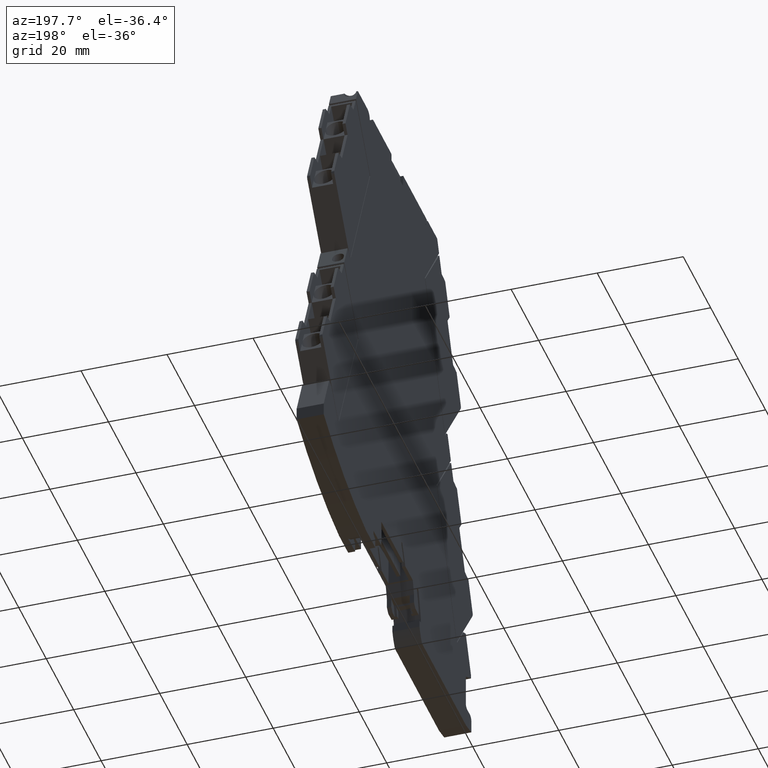
[diagram: clean part render]
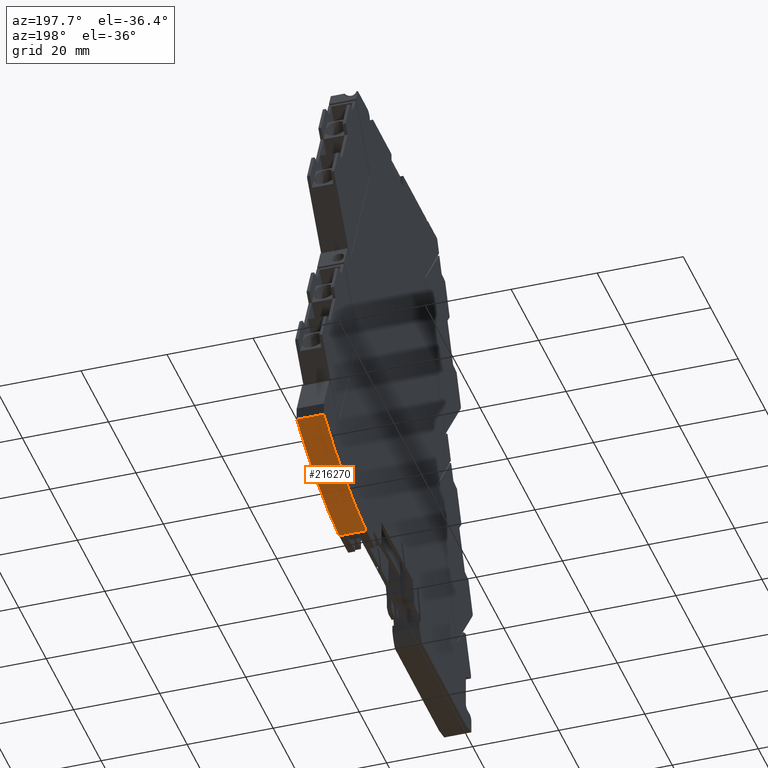
[diagram: same view with one face highlighted and labeled with its STEP entity id]
A machine part, auxiliary view. The second image highlights one B-rep face of the part: STEP entity #216270.
In plain terms, the highlighted cylindrical surface (partial cylindrical patch) has radius 80 mm, axis along (1, -0, 0).
Its self-contained STEP definition (entity closure, byte-faithful):
#64910=CARTESIAN_POINT('',(38.8654179275983,-6.49999999999157,
-14.6999999993261));
#64920=VERTEX_POINT('',#64910);
#64950=CARTESIAN_POINT('',(29.5007235919562,72.9500000000084,
-14.6999999994091));
#64960=DIRECTION('',(-8.87912561076062E-12,6.5458857184369E-15,1.));
#64970=DIRECTION('',(1.,1.11022302459215E-16,8.87912561076062E-12));
#64980=AXIS2_PLACEMENT_3D('',#64950,#64960,#64970);
#64990=CIRCLE('',#64980,80.0000000000001);
#65000=CARTESIAN_POINT('',(69.7507235919569,3.81290792925414,
-14.699999999052));
#65010=VERTEX_POINT('',#65000);
#65020=EDGE_CURVE('',#64920,#65010,#64990,.T.);
#70130=CARTESIAN_POINT('',(69.750723591901,3.81290792925418,
-8.39999999932436));
#70140=VERTEX_POINT('',#70130);
#70170=CARTESIAN_POINT('',(29.5007235919003,72.9500000000085,
-8.3999999996822));
#70180=DIRECTION('',(-8.87912561076062E-12,6.5458857184369E-15,1.));
#70190=DIRECTION('',(1.,1.11022302459215E-16,8.87912561076062E-12));
#70200=AXIS2_PLACEMENT_3D('',#70170,#70180,#70190);
#70210=CIRCLE('',#70200,80.0000000000001);
#70220=CARTESIAN_POINT('',(38.8654179275423,-6.49999999999153,
-8.39999999959853));
#70230=VERTEX_POINT('',#70220);
#70240=EDGE_CURVE('',#70230,#70140,#70210,.T.);
#195890=CARTESIAN_POINT('',(69.750723591901,3.81290792925418,
-8.39999999932436));
#195900=DIRECTION('',(-8.87912561076062E-12,6.5458857184369E-15,1.));
#195910=VECTOR('',#195900,1.);
#195920=LINE('',#195890,#195910);
#195930=EDGE_CURVE('',#65010,#70140,#195920,.T.);
#215250=CARTESIAN_POINT('',(38.8654179275423,-6.49999999999153,
-8.39999999959853));
#215260=DIRECTION('',(8.87912561076062E-12,-6.5458857184369E-15,-1.));
#215270=VECTOR('',#215260,1.);
#215280=LINE('',#215250,#215270);
#215290=EDGE_CURVE('',#70230,#64920,#215280,.T.);
#216160=CARTESIAN_POINT('',(29.5007235919003,72.9500000000085,
-8.3999999996822));
#216170=DIRECTION('',(-8.87912561076062E-12,6.5458857184369E-15,1.));
#216180=DIRECTION('',(1.,1.11022302459215E-16,8.87912561076062E-12));
#216190=AXIS2_PLACEMENT_3D('',#216160,#216170,#216180);
#216200=CYLINDRICAL_SURFACE('',#216190,80.0000000000001);
#216210=ORIENTED_EDGE('',*,*,#70240,.F.);
#216220=ORIENTED_EDGE('',*,*,#195930,.T.);
#216230=ORIENTED_EDGE('',*,*,#65020,.T.);
#216240=ORIENTED_EDGE('',*,*,#215290,.T.);
#216250=EDGE_LOOP('',(#216240,#216230,#216220,#216210));
#216260=FACE_OUTER_BOUND('',#216250,.T.);
#216270=ADVANCED_FACE('',(#216260),#216200,.T.);